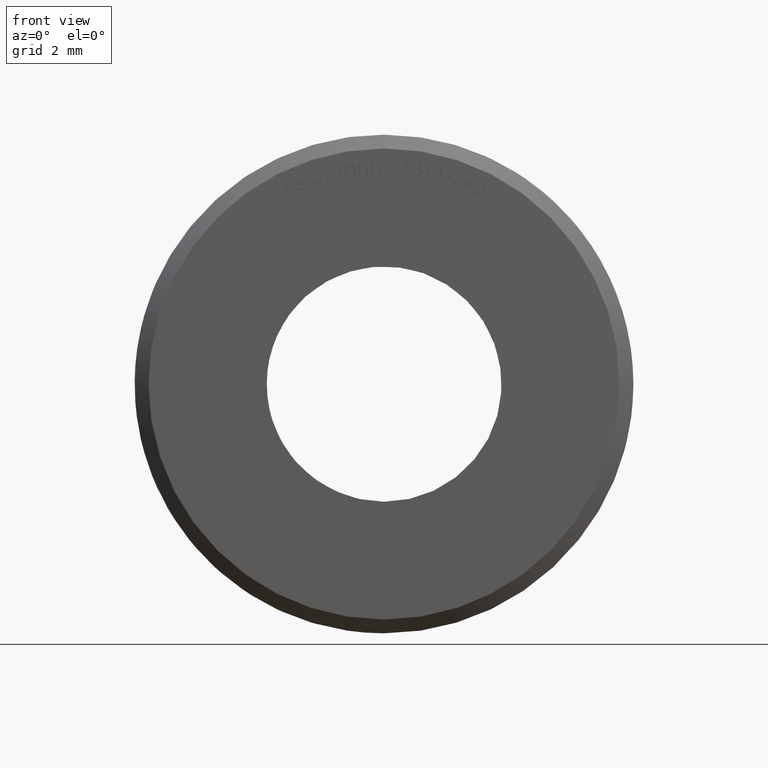
[diagram: clean part render]
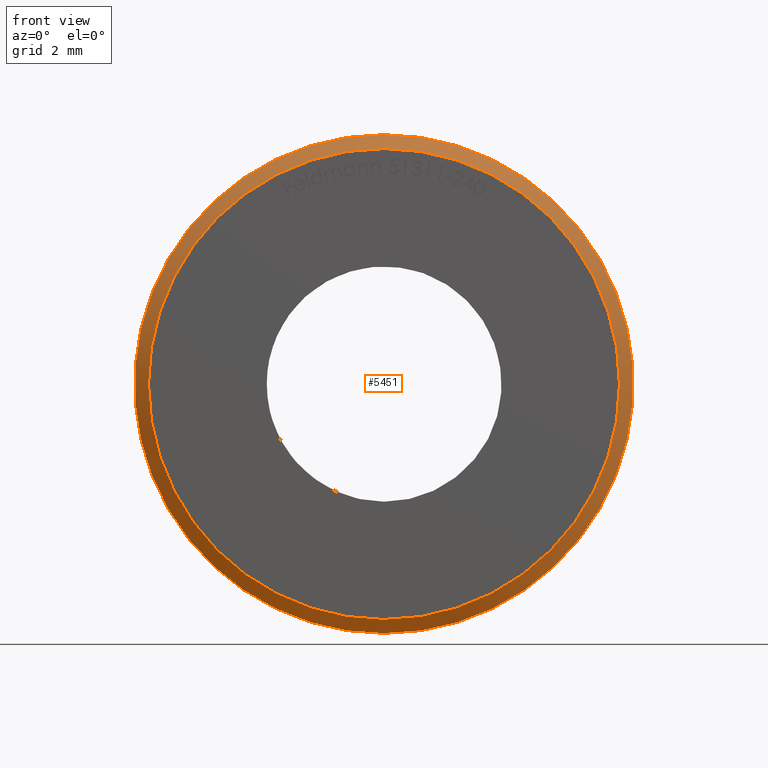
[diagram: same view with one face highlighted and labeled with its STEP entity id]
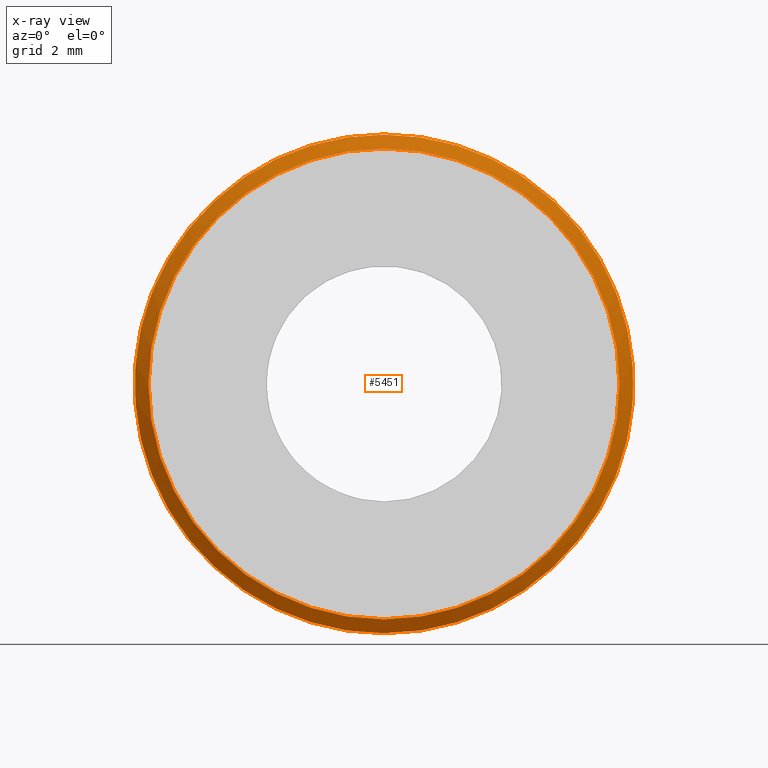
[diagram: x-ray of the same camera — body ghosted, the highlighted face saturated]
A machine part, front view. The second image highlights one B-rep face of the part: STEP entity #5451.
The next image is the same camera in x-ray: the body ghosted, the highlighted face saturated — about 0% of this face is hidden behind the body in this view.
In plain terms, the highlighted conical surface has half-angle 45 deg.
Its self-contained STEP definition (entity closure, byte-faithful):
#422 = CIRCLE ( 'NONE', #4371, 9.000000000000000000 ) ;
#483 = FACE_BOUND ( 'NONE', #6961, .T. ) ;
#754 = CONICAL_SURFACE ( 'NONE', #7130, 9.000000000000000000, 0.7853981633974482790 ) ;
#1242 = VERTEX_POINT ( 'NONE', #3593 ) ;
#1660 = DIRECTION ( 'NONE',  ( 0.000000000000000000, 0.000000000000000000, 1.000000000000000000 ) ) ;
#3593 = CARTESIAN_POINT ( 'NONE',  ( 0.000000000000000000, 0.5000000000000056621, 9.000000000000000000 ) ) ;
#4371 = AXIS2_PLACEMENT_3D ( 'NONE', #6905, #9571, #1660 ) ;
#5078 = VERTEX_POINT ( 'NONE', #11341 ) ;
#5227 = CARTESIAN_POINT ( 'NONE',  ( 0.000000000000000000, 0.5000000000000056621, 0.000000000000000000 ) ) ;
#5269 = CARTESIAN_POINT ( 'NONE',  ( 0.000000000000000000, 0.000000000000000000, 0.000000000000000000 ) ) ;
#5295 = FACE_OUTER_BOUND ( 'NONE', #9921, .T. ) ;
#5451 = ADVANCED_FACE ( 'NONE', ( #483, #5295 ), #754, .T. ) ;
#6161 = DIRECTION ( 'NONE',  ( -0.000000000000000000, -1.000000000000000000, -0.000000000000000000 ) ) ;
#6878 = ORIENTED_EDGE ( 'NONE', *, *, #10241, .F. ) ;
#6905 = CARTESIAN_POINT ( 'NONE',  ( 0.000000000000000000, 0.5000000000000056621, 0.000000000000000000 ) ) ;
#6910 = DIRECTION ( 'NONE',  ( 0.000000000000000000, 0.000000000000000000, 1.000000000000000000 ) ) ;
#6961 = EDGE_LOOP ( 'NONE', ( #10215 ) ) ;
#7060 = DIRECTION ( 'NONE',  ( 0.000000000000000000, 0.000000000000000000, 1.000000000000000000 ) ) ;
#7130 = AXIS2_PLACEMENT_3D ( 'NONE', #5227, #11286, #6910 ) ;
#9571 = DIRECTION ( 'NONE',  ( -0.000000000000000000, 1.000000000000000000, -0.000000000000000000 ) ) ;
#9875 = EDGE_CURVE ( 'NONE', #5078, #5078, #10547, .T. ) ;
#9921 = EDGE_LOOP ( 'NONE', ( #6878 ) ) ;
#10206 = AXIS2_PLACEMENT_3D ( 'NONE', #5269, #6161, #7060 ) ;
#10215 = ORIENTED_EDGE ( 'NONE', *, *, #9875, .F. ) ;
#10241 = EDGE_CURVE ( 'NONE', #1242, #1242, #422, .T. ) ;
#10547 = CIRCLE ( 'NONE', #10206, 8.499999999999992895 ) ;
#11286 = DIRECTION ( 'NONE',  ( -0.000000000000000000, 1.000000000000000000, -0.000000000000000000 ) ) ;
#11341 = CARTESIAN_POINT ( 'NONE',  ( 0.000000000000000000, 0.000000000000000000, 8.499999999999992895 ) ) ;